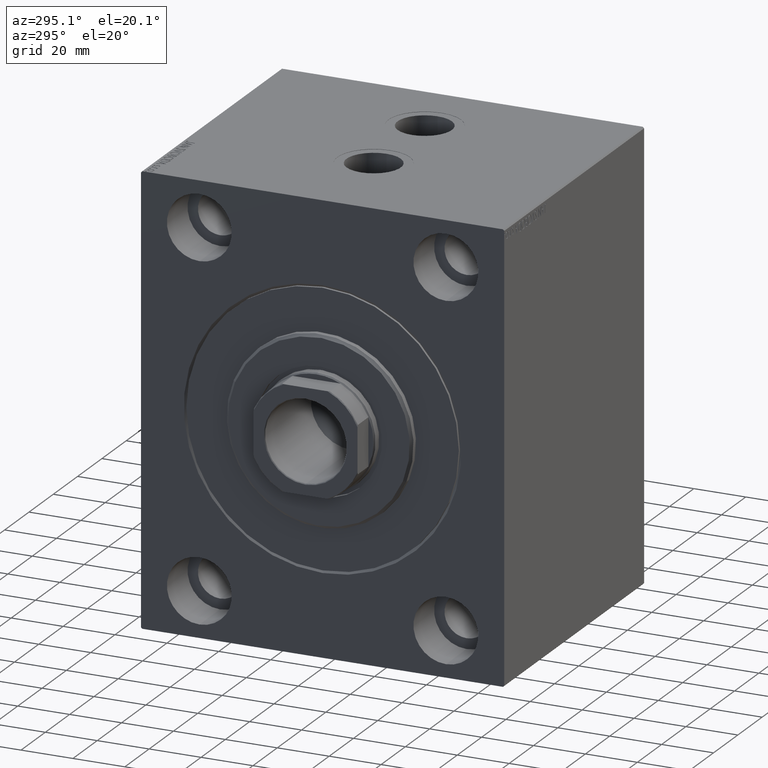
[diagram: clean part render]
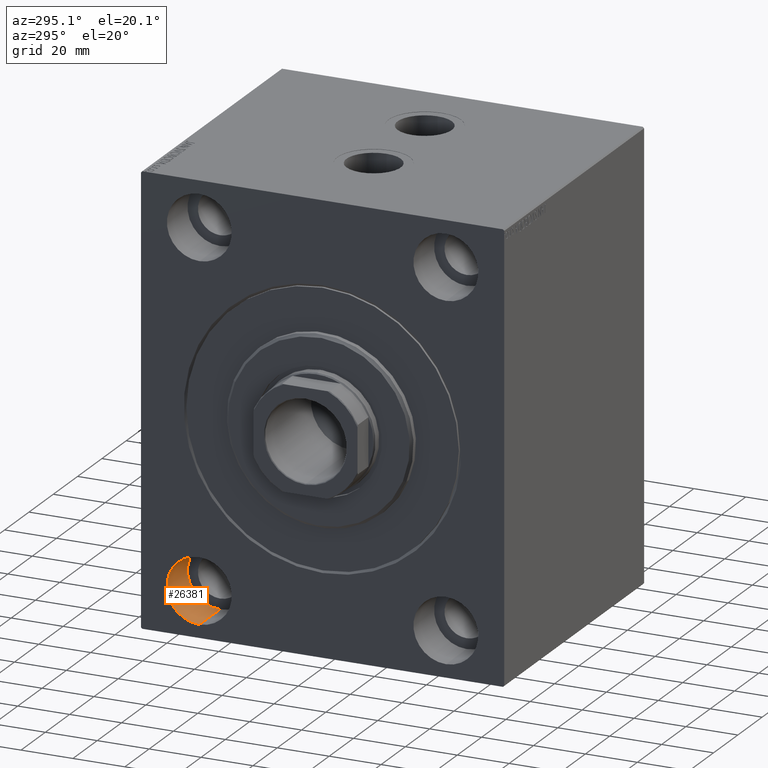
[diagram: same view with one face highlighted and labeled with its STEP entity id]
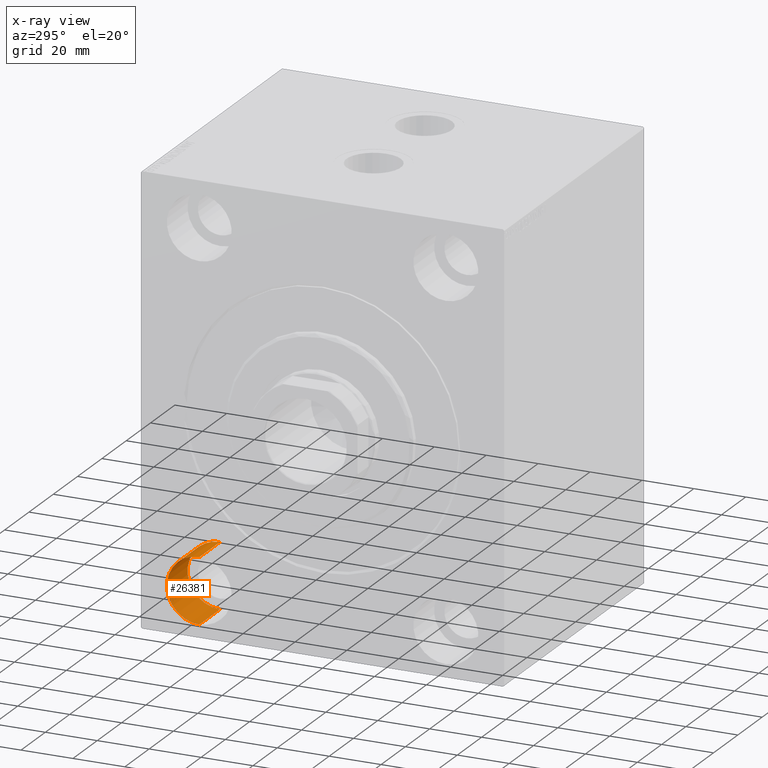
[diagram: x-ray of the same camera — body ghosted, the highlighted face saturated]
A machine part, auxiliary view. The second image highlights one B-rep face of the part: STEP entity #26381.
The next image is the same camera in x-ray: the body ghosted, the highlighted face saturated — about 0% of this face is hidden behind the body in this view.
In plain terms, the highlighted cylindrical surface (edge-blend (fillet) strip) has radius 12.5 mm, axis along (-1, -0, -0).
Its self-contained STEP definition (entity closure, byte-faithful):
#146 = LINE ( 'NONE', #13542, #26721 ) ;
#1901 = CARTESIAN_POINT ( 'NONE',  ( 17.00000000000000000, 47.50000000000000711, -55.00000000000000711 ) ) ;
#2347 = DIRECTION ( 'NONE',  ( 0.000000000000000000, 0.000000000000000000, 1.000000000000000000 ) ) ;
#4043 = DIRECTION ( 'NONE',  ( 0.000000000000000000, 0.000000000000000000, 1.000000000000000000 ) ) ;
#4061 = CARTESIAN_POINT ( 'NONE',  ( 17.00000000000000000, 47.50000000000000711, -67.50000000000000000 ) ) ;
#6225 = CIRCLE ( 'NONE', #33924, 12.49999999999999645 ) ;
#7722 = VECTOR ( 'NONE', #42392, 1000.000000000000000 ) ;
#8412 = VERTEX_POINT ( 'NONE', #41087 ) ;
#8854 = CARTESIAN_POINT ( 'NONE',  ( 0.000000000000000000, 47.50000000000000711, -80.00000000000000000 ) ) ;
#9303 = AXIS2_PLACEMENT_3D ( 'NONE', #33502, #16580, #2347 ) ;
#10932 = DIRECTION ( 'NONE',  ( -1.000000000000000000, 0.000000000000000000, 0.000000000000000000 ) ) ;
#11247 = ORIENTED_EDGE ( 'NONE', *, *, #29841, .F. ) ;
#13425 = CIRCLE ( 'NONE', #37573, 12.49999999999999645 ) ;
#13542 = CARTESIAN_POINT ( 'NONE',  ( 17.00000000000000000, 47.50000000000000711, -80.00000000000000000 ) ) ;
#15282 = EDGE_CURVE ( 'NONE', #29637, #8412, #6225, .T. ) ;
#16580 = DIRECTION ( 'NONE',  ( -1.000000000000000000, -0.000000000000000000, -0.000000000000000000 ) ) ;
#17769 = ORIENTED_EDGE ( 'NONE', *, *, #15282, .F. ) ;
#18487 = EDGE_LOOP ( 'NONE', ( #11247, #17769, #25617, #34091 ) ) ;
#19761 = DIRECTION ( 'NONE',  ( -1.000000000000000000, -0.000000000000000000, -0.000000000000000000 ) ) ;
#19922 = FACE_OUTER_BOUND ( 'NONE', #18487, .T. ) ;
#23466 = CYLINDRICAL_SURFACE ( 'NONE', #9303, 12.49999999999999645 ) ;
#24321 = CARTESIAN_POINT ( 'NONE',  ( 0.000000000000000000, 47.50000000000000711, -55.00000000000000711 ) ) ;
#24586 = LINE ( 'NONE', #1901, #7722 ) ;
#25099 = CARTESIAN_POINT ( 'NONE',  ( 17.00000000000000000, 47.50000000000000711, -55.00000000000000711 ) ) ;
#25617 = ORIENTED_EDGE ( 'NONE', *, *, #36162, .T. ) ;
#26381 = ADVANCED_FACE ( 'NONE', ( #19922 ), #23466, .F. ) ;
#26721 = VECTOR ( 'NONE', #19761, 1000.000000000000000 ) ;
#27335 = VERTEX_POINT ( 'NONE', #8854 ) ;
#29637 = VERTEX_POINT ( 'NONE', #25099 ) ;
#29841 = EDGE_CURVE ( 'NONE', #8412, #27335, #146, .T. ) ;
#30763 = CARTESIAN_POINT ( 'NONE',  ( 0.000000000000000000, 47.50000000000000711, -67.50000000000000000 ) ) ;
#32538 = DIRECTION ( 'NONE',  ( 0.000000000000000000, 0.000000000000000000, 1.000000000000000000 ) ) ;
#33502 = CARTESIAN_POINT ( 'NONE',  ( 17.00000000000000000, 47.50000000000000711, -67.50000000000000000 ) ) ;
#33924 = AXIS2_PLACEMENT_3D ( 'NONE', #4061, #35421, #32538 ) ;
#34091 = ORIENTED_EDGE ( 'NONE', *, *, #41274, .T. ) ;
#34303 = VERTEX_POINT ( 'NONE', #24321 ) ;
#35421 = DIRECTION ( 'NONE',  ( -1.000000000000000000, 0.000000000000000000, 0.000000000000000000 ) ) ;
#36162 = EDGE_CURVE ( 'NONE', #29637, #34303, #24586, .T. ) ;
#37573 = AXIS2_PLACEMENT_3D ( 'NONE', #30763, #10932, #4043 ) ;
#41087 = CARTESIAN_POINT ( 'NONE',  ( 17.00000000000000000, 47.50000000000000711, -80.00000000000000000 ) ) ;
#41274 = EDGE_CURVE ( 'NONE', #34303, #27335, #13425, .T. ) ;
#42392 = DIRECTION ( 'NONE',  ( -1.000000000000000000, -0.000000000000000000, -0.000000000000000000 ) ) ;